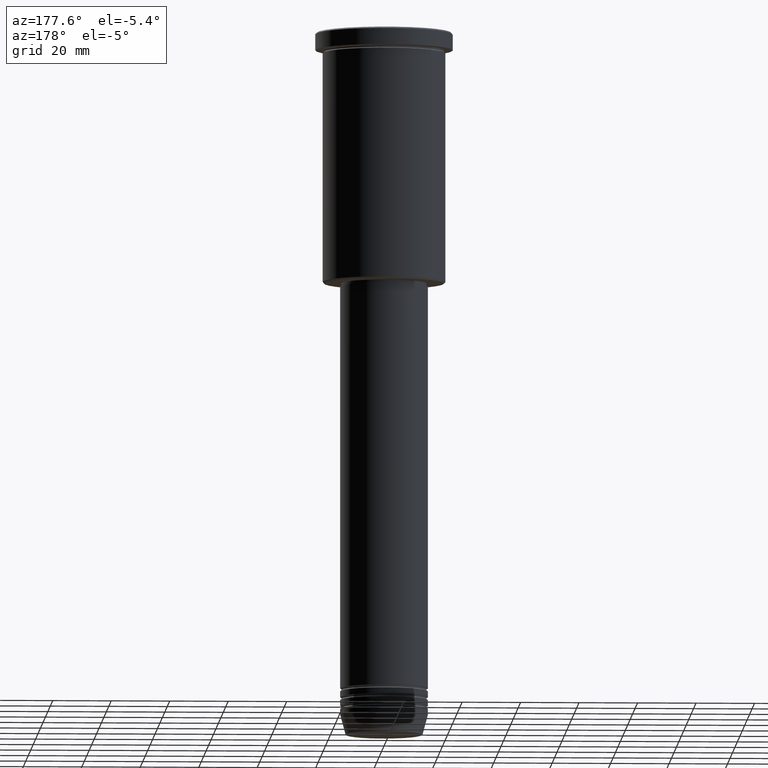
[diagram: clean part render]
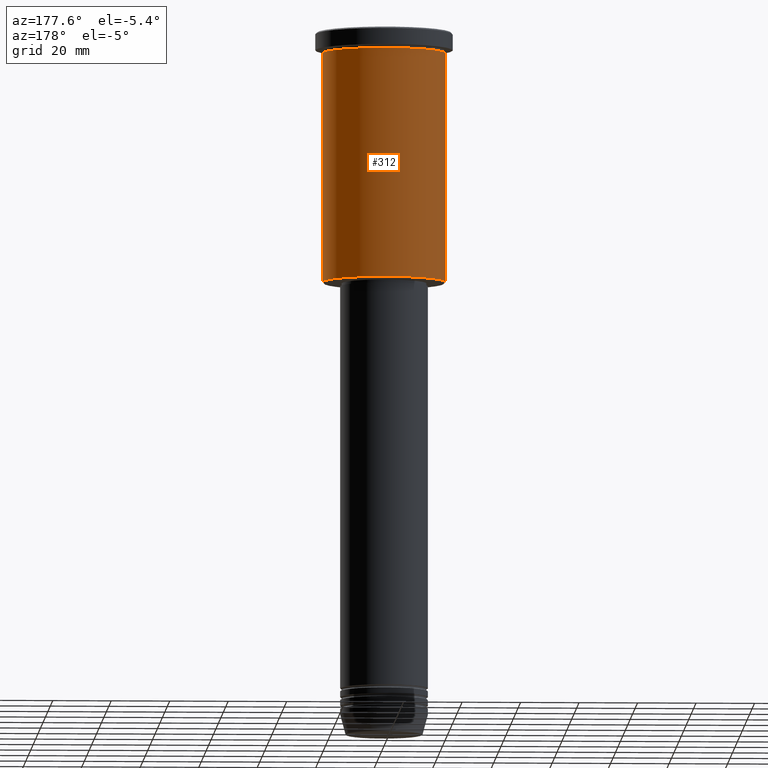
[diagram: same view with one face highlighted and labeled with its STEP entity id]
A machine part, auxiliary view. The second image highlights one B-rep face of the part: STEP entity #312.
In plain terms, the highlighted cylindrical surface (partial cylindrical patch) has radius 21 mm, axis along (-0, -0, 1).
Its self-contained STEP definition (entity closure, byte-faithful):
#9 = ORIENTED_EDGE ( 'NONE', *, *, #254, .F. ) ;
#121 = CARTESIAN_POINT ( 'NONE',  ( 21.00000000000000000, 0.000000000000000000, -6.999999999999994671 ) ) ;
#131 = CIRCLE ( 'NONE', #259, 21.00000000000000000 ) ;
#164 = VERTEX_POINT ( 'NONE', #531 ) ;
#212 = CYLINDRICAL_SURFACE ( 'NONE', #286, 21.00000000000000000 ) ;
#222 = DIRECTION ( 'NONE',  ( -0.000000000000000000, -0.000000000000000000, 1.000000000000000000 ) ) ;
#235 = DIRECTION ( 'NONE',  ( -0.000000000000000000, -0.000000000000000000, 1.000000000000000000 ) ) ;
#254 = EDGE_CURVE ( 'NONE', #572, #316, #630, .T. ) ;
#259 = AXIS2_PLACEMENT_3D ( 'NONE', #1152, #235, #1059 ) ;
#268 = DIRECTION ( 'NONE',  ( -0.000000000000000000, -0.000000000000000000, 1.000000000000000000 ) ) ;
#286 = AXIS2_PLACEMENT_3D ( 'NONE', #469, #940, #678 ) ;
#308 = FACE_OUTER_BOUND ( 'NONE', #446, .T. ) ;
#312 = ADVANCED_FACE ( 'NONE', ( #308 ), #212, .T. ) ;
#316 = VERTEX_POINT ( 'NONE', #121 ) ;
#325 = VECTOR ( 'NONE', #222, 1000.000000000000000 ) ;
#342 = VECTOR ( 'NONE', #268, 1000.000000000000000 ) ;
#368 = EDGE_CURVE ( 'NONE', #833, #164, #674, .T. ) ;
#380 = DIRECTION ( 'NONE',  ( -0.000000000000000000, -0.000000000000000000, 1.000000000000000000 ) ) ;
#391 = ORIENTED_EDGE ( 'NONE', *, *, #568, .F. ) ;
#435 = CIRCLE ( 'NONE', #1105, 21.00000000000000000 ) ;
#446 = EDGE_LOOP ( 'NONE', ( #481, #1095, #391, #9 ) ) ;
#469 = CARTESIAN_POINT ( 'NONE',  ( 0.000000000000000000, 0.000000000000000000, 0.000000000000000000 ) ) ;
#481 = ORIENTED_EDGE ( 'NONE', *, *, #1054, .T. ) ;
#531 = CARTESIAN_POINT ( 'NONE',  ( -21.00000000000000000, 2.571758278209441661E-15, -6.999999999999994671 ) ) ;
#536 = CARTESIAN_POINT ( 'NONE',  ( 21.00000000000000000, 0.000000000000000000, 0.000000000000000000 ) ) ;
#568 = EDGE_CURVE ( 'NONE', #316, #164, #131, .T. ) ;
#572 = VERTEX_POINT ( 'NONE', #867 ) ;
#574 = CARTESIAN_POINT ( 'NONE',  ( 0.000000000000000000, 0.000000000000000000, -85.50000000000001421 ) ) ;
#630 = LINE ( 'NONE', #536, #342 ) ;
#674 = LINE ( 'NONE', #1016, #325 ) ;
#678 = DIRECTION ( 'NONE',  ( 1.000000000000000000, 0.000000000000000000, 0.000000000000000000 ) ) ;
#739 = CARTESIAN_POINT ( 'NONE',  ( -21.00000000000000000, 2.571758278209441661E-15, -85.50000000000001421 ) ) ;
#833 = VERTEX_POINT ( 'NONE', #739 ) ;
#867 = CARTESIAN_POINT ( 'NONE',  ( 21.00000000000000000, 0.000000000000000000, -85.50000000000001421 ) ) ;
#927 = DIRECTION ( 'NONE',  ( -1.000000000000000000, 0.000000000000000000, 0.000000000000000000 ) ) ;
#940 = DIRECTION ( 'NONE',  ( -0.000000000000000000, -0.000000000000000000, 1.000000000000000000 ) ) ;
#1016 = CARTESIAN_POINT ( 'NONE',  ( -21.00000000000000000, 2.571758278209441661E-15, 0.000000000000000000 ) ) ;
#1054 = EDGE_CURVE ( 'NONE', #572, #833, #435, .T. ) ;
#1059 = DIRECTION ( 'NONE',  ( 1.000000000000000000, 0.000000000000000000, 0.000000000000000000 ) ) ;
#1095 = ORIENTED_EDGE ( 'NONE', *, *, #368, .T. ) ;
#1105 = AXIS2_PLACEMENT_3D ( 'NONE', #574, #380, #927 ) ;
#1152 = CARTESIAN_POINT ( 'NONE',  ( 0.000000000000000000, 0.000000000000000000, -6.999999999999994671 ) ) ;